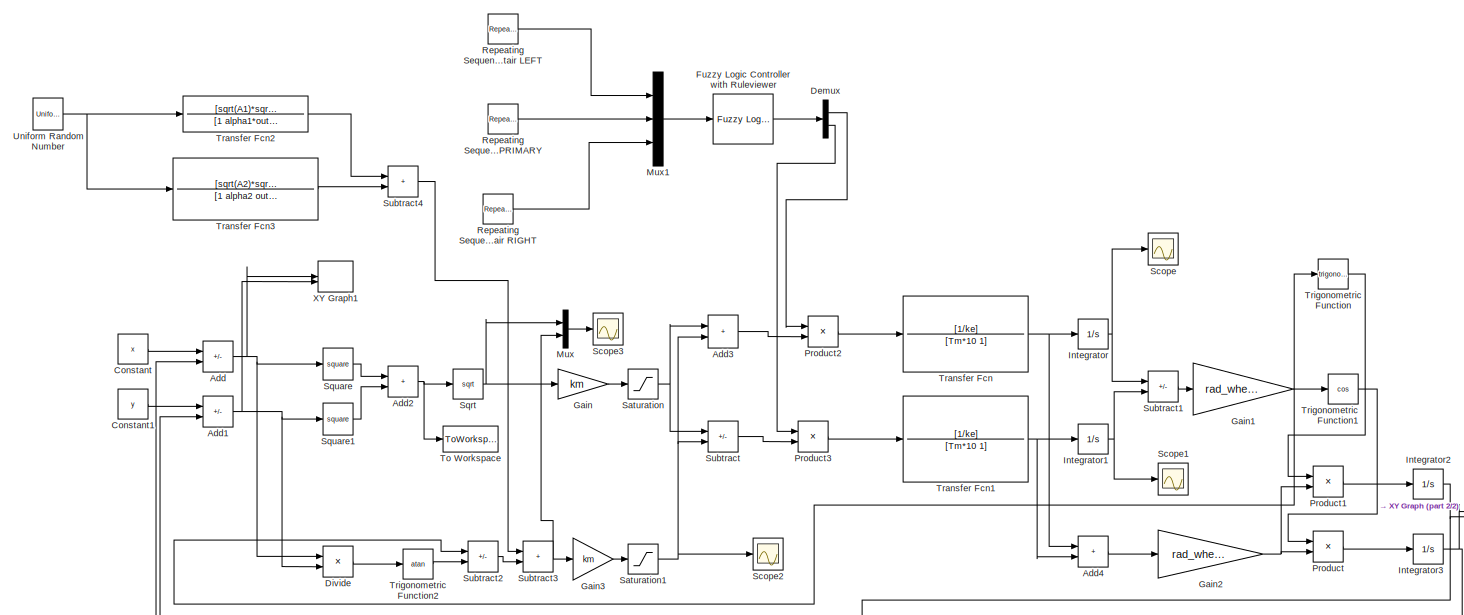
[diagram: root canvas - part 1/2, most of the canvas]
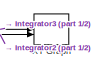
[diagram: root canvas - part 2/2, bottom right region]
MODEL slx_6c92a21a4b9f
KIND model
CONFIG AbsTol = auto
CONFIG EnableMultiTasking = off
CONFIG FixedStep = 0.001
CONFIG MaxStep = auto
CONFIG MinStep = auto
CONFIG RelTol = 1e-3
CONFIG SampleTimeConstraint = Unconstrained
CONFIG SolverName = FixedStepAuto
CONFIG StartTime = 0.0
CONFIG StopTime = ts
BLOCK [Sum] Add
  IconShape = rectangular
  Inputs = +-
BLOCK [Sum] Add1
  IconShape = rectangular
  Inputs = +-
BLOCK [Sum] Add2
  IconShape = rectangular
BLOCK [Sum] Add3
  IconShape = rectangular
BLOCK [Sum] Add4
  IconShape = rectangular
BLOCK [Constant] Constant
  Value = x
BLOCK [Constant] Constant1
  Value = y
BLOCK [Demux] Demux
  Outputs = 2
BLOCK [Product] Divide
  Inputs = */
BLOCK [Reference] Fuzzy Logic Controller with Ruleviewer  REF=fuzblock/Fuzzy Logic   (lib defined in mdl_858b3b3e7478)
Controller 
with Ruleviewer
  SourceBlock = fuzblock/Fuzzy Logic \nController \nwith Ruleviewer
  SourceType = Fuzzy Inference System
BLOCK [Gain] Gain
  Gain = km
BLOCK [Gain] Gain1
  Gain = rad_wheel/base
BLOCK [Gain] Gain2
  Gain = rad_wheel/2
BLOCK [Gain] Gain3
  Gain = km
BLOCK [Integrator] Integrator
BLOCK [Integrator] Integrator1
BLOCK [Integrator] Integrator2
BLOCK [Integrator] Integrator3
BLOCK [Mux] Mux
  DisplayOption = bar
  Inputs = 2
BLOCK [Mux] Mux1
  DisplayOption = bar
  Inputs = 3
BLOCK [Product] Product
BLOCK [Product] Product1
BLOCK [Product] Product2
BLOCK [Product] Product3
BLOCK [Reference] Repeating Sequence Stair LEFT  REF=simulink/Sources/Repeating
Sequence
Stair
  SourceBlock = simulink/Sources/Repeating\nSequence\nStair
  SourceType = Repeating Sequence Stair
BLOCK [Reference] Repeating Sequence Stair PRIMARY  REF=simulink/Sources/Repeating
Sequence
Stair
  SourceBlock = simulink/Sources/Repeating\nSequence\nStair
  SourceType = Repeating Sequence Stair
BLOCK [Reference] Repeating Sequence Stair RIGHT  REF=simulink/Sources/Repeating
Sequence
Stair
  SourceBlock = simulink/Sources/Repeating\nSequence\nStair
  SourceType = Repeating Sequence Stair
BLOCK [Saturate] Saturation
  LowerLimit = -5
  UpperLimit = 5
BLOCK [Saturate] Saturation1
  LowerLimit = -5
  UpperLimit = 5
BLOCK [Scope] Scope
  Floating = off
  NumInputPorts = 1
  ScopeSpecificationString = Simulink.scopes.TimeScopeBlockCfg('CurrentConfiguration', extmgr.ConfigurationSet(extmgr.Configuration('Core','General UI',true),extmgr.Configuration('Core','Source UI',true),extmgr.Configuration('Sources','WiredSimulink',true),extmgr.Configuration('Visuals','Time Domain',true,'SerializedDisplays',{struct('MinYLimReal','-91.59098','MaxYLimReal','824.31882','YLabelReal','','MinYLimMag','0.00000','M...<+1359ch>
BLOCK [Scope] Scope1
  Floating = off
  NumInputPorts = 1
  ScopeSpecificationString = Simulink.scopes.TimeScopeBlockCfg('CurrentConfiguration', extmgr.ConfigurationSet(extmgr.Configuration('Core','General UI',true),extmgr.Configuration('Core','Source UI',true),extmgr.Configuration('Sources','WiredSimulink',true,'DataLoggingVariableName','ScopeData1'),extmgr.Configuration('Visuals','Time Domain',true,'SerializedDisplays',{struct('MinYLimReal','-20.48943','MaxYLimReal','184.40489','Y...<+1453ch>
BLOCK [Scope] Scope2
  Floating = off
  NumInputPorts = 1
  ScopeSpecificationString = Simulink.scopes.TimeScopeBlockCfg('CurrentConfiguration', extmgr.ConfigurationSet(extmgr.Configuration('Core','General UI',true),extmgr.Configuration('Core','Source UI',true),extmgr.Configuration('Sources','WiredSimulink',true,'DataLoggingVariableName','ScopeData2'),extmgr.Configuration('Visuals','Time Domain',true,'SerializedDisplays',{struct('MinYLimReal','-0.80171','MaxYLimReal','5.64463','YLab...<+1422ch>
BLOCK [Scope] Scope3
  Floating = off
  NumInputPorts = 1
  ScopeSpecificationString = Simulink.scopes.TimeScopeBlockCfg('CurrentConfiguration', extmgr.ConfigurationSet(extmgr.Configuration('Core','General UI',true),extmgr.Configuration('Core','Source UI',true),extmgr.Configuration('Sources','WiredSimulink',true,'DataLoggingVariableName','ScopeData1'),extmgr.Configuration('Visuals','Time Domain',true,'SerializedDisplays',{struct('MinYLimReal','-3.97309','MaxYLimReal','3.96331','YLab...<+1400ch>
BLOCK [Sqrt] Sqrt
BLOCK [Math] Square
  Operator = square
BLOCK [Math] Square1
  Operator = square
BLOCK [Sum] Subtract
  IconShape = rectangular
  Inputs = +-
BLOCK [Sum] Subtract1
  IconShape = rectangular
  Inputs = +-
BLOCK [Sum] Subtract2
  IconShape = rectangular
  Inputs = -+
BLOCK [Sum] Subtract3
  IconShape = rectangular
BLOCK [Sum] Subtract4
  IconShape = rectangular
BLOCK [ToWorkspace] To Workspace
  FixptAsFi = on
  MaxDataPoints = 1
  SampleTime = -1
  Save2DSignal = 2-D array (concatenate along first dimension)
  SaveFormat = Structure
  VariableName = V
BLOCK [TransferFcn] Transfer Fcn
  Denominator = [Tm*10 1]
  Numerator = [1/ke]
BLOCK [TransferFcn] Transfer Fcn1
  Denominator = [Tm*10 1]
  Numerator = [1/ke]
BLOCK [TransferFcn] Transfer Fcn2
  Denominator = [1 alpha1*out.V.signals.values]
  Numerator = [sqrt(A1)*sqrt(2*alpha1)*out.V.signals.values]
BLOCK [TransferFcn] Transfer Fcn3
  Denominator = [1 alpha2 out.V.signals.values^2*(alpha2^2+betta^2)]
  Numerator = [sqrt(A2)*sqrt(2*alpha2*out.V.signals.values) out.V.signals.values*sqrt(A2)*sqrt(2*alpha2)*sqrt(alpha2^2+betta^2)]
BLOCK [Trigonometry] Trigonometric Function
BLOCK [Trigonometry] Trigonometric Function1
  Operator = cos
BLOCK [Trigonometry] Trigonometric Function2
  Operator = atan
BLOCK [UniformRandomNumber] Uniform Random Number
  SampleTime = 0.1
BLOCK [Record] XY Graph
  CompatibilityTag = XY
  FileSettingsInternal = {"entries":[{"content":{"excelSettings":{"content":{},"type":"Streamout.ExcelSettings"}},"type":"Streamout.FileSettingStorage","uuid":"aa12a716-93a2-48b4-a55e-da8b9cd06314"}],"packageUris":["http://schema.mathworks.com/mf0/streamout_blocks/R2020a"],"version":"1.0"}
  Layout = [1 1]
  SignalsInternal = {"entries":[{"content":{"signals":[{"content":{"blockPath":["Model/XY Graph"],"channel":[],"dimensions":[1],"domain":"Model/XY Graph","lineColor":"#a2142f","plots":[1],"port":1,"sid":[""],"signalID":23953,"signalName":"Integrator3"},"type":"RecordBlkView.Signal","uuid":"0444dae7-0da9-414e-a023-1bf7262167d7"},{"content":{"blockPath":["Model/XY Graph"],"channel":[],"dimensions":[1],"domain":"Model/X...<+361ch>
  VisualizationBindings = {"xyplotplugin":{"info":[{"series":[{"bindingParametersList":[{"parameter":"X-Axis","signalID":23953,"signalName":"Integrator3"},{"parameter":"Y-Axis","signalID":23957,"signalName":"Integrator2"}],"seriesID":30355}],"subplotID":1}]}}
BLOCK [Record] XY Graph1
  CompatibilityTag = XY
  FileSettingsInternal = {"entries":[{"content":{"excelSettings":{"content":{},"type":"Streamout.ExcelSettings"}},"type":"Streamout.FileSettingStorage","uuid":"9ece608a-e883-48e9-9140-3a9e7ef14128"}],"packageUris":["http://schema.mathworks.com/mf0/streamout_blocks/R2020a"],"version":"1.0"}
  Layout = [1 1]
  SignalsInternal = {"entries":[{"content":{"signals":[{"content":{"blockPath":["Model/XY Graph1"],"channel":[],"dimensions":[1],"domain":"Model/XY Graph1","lineColor":"#a2142f","plots":[1],"port":1,"sid":[""],"signalID":23961,"signalName":"Add"},"type":"RecordBlkView.Signal","uuid":"d6554a96-d76f-4e85-b7c2-258af4738fcc"},{"content":{"blockPath":["Model/XY Graph1"],"channel":[],"dimensions":[1],"domain":"Model/XY Gra...<+350ch>
  VisualizationBindings = {"xyplotplugin":{"info":[{"series":[{"bindingParametersList":[{"parameter":"X-Axis","signalID":23961,"signalName":"Add"},{"parameter":"Y-Axis","signalID":23965,"signalName":"Add1"}],"seriesID":54777}],"subplotID":1}]}}
NET Add1:1 -> Divide:2, Square1:1, XY Graph1:2
NET Add2:1 -> Sqrt:1, To Workspace:1
LINE Add3:1 -> Product2:2
LINE Add4:1 -> Gain2:1
NET Add:1 -> Divide:1, Square:1, XY Graph1:1
LINE Constant1:1 -> Add1:1
LINE Constant:1 -> Add:1
LINE Demux:1 -> Product2:1
LINE Demux:2 -> Product3:1
LINE Divide:1 -> Trigonometric Function2:1
LINE Fuzzy Logic Controller with Ruleviewer:1 -> Demux:1
NET Gain1:1 -> Subtract2:1, Trigonometric Function1:1, Trigonometric Function:1
NET Gain2:1 -> Product1:2, Product:2
LINE Gain3:1 -> Saturation1:1
LINE Gain:1 -> Saturation:1
NET Integrator1:1 -> Scope1:1, Subtract1:2
NET Integrator2:1 -> Add1:2, XY Graph:2
NET Integrator3:1 -> Add:2, XY Graph:1
NET Integrator:1 -> Scope:1, Subtract1:1
LINE Mux1:1 -> Fuzzy Logic Controller with Ruleviewer:1
LINE Mux:1 -> Scope3:1
LINE Product1:1 -> Integrator2:1
LINE Product2:1 -> Transfer Fcn:1
LINE Product3:1 -> Transfer Fcn1:1
LINE Product:1 -> Integrator3:1
LINE Repeating Sequence Stair LEFT:1 -> Mux1:1
LINE Repeating Sequence Stair PRIMARY:1 -> Mux1:2
LINE Repeating Sequence Stair RIGHT:1 -> Mux1:3
NET Saturation1:1 -> Add3:2, Scope2:1, Subtract:2
NET Saturation:1 -> Add3:1, Subtract:1
NET Sqrt:1 -> Gain:1, Mux:1
LINE Square1:1 -> Add2:2
LINE Square:1 -> Add2:1
LINE Subtract1:1 -> Gain1:1
LINE Subtract2:1 -> Subtract3:2
NET Subtract3:1 -> Gain3:1, Mux:2
LINE Subtract4:1 -> Subtract3:1
LINE Subtract:1 -> Product3:2
NET Transfer Fcn1:1 -> Add4:2, Integrator1:1
LINE Transfer Fcn2:1 -> Subtract4:1
LINE Transfer Fcn3:1 -> Subtract4:2
NET Transfer Fcn:1 -> Add4:1, Integrator:1
LINE Trigonometric Function1:1 -> Product:1
LINE Trigonometric Function2:1 -> Subtract2:2
LINE Trigonometric Function:1 -> Product1:1
NET Uniform Random Number:1 -> Transfer Fcn2:1, Transfer Fcn3:1
note: NET lines group one-source signal fan-out (src -> all destinations, sorted); 1:1 wires keep LINE
